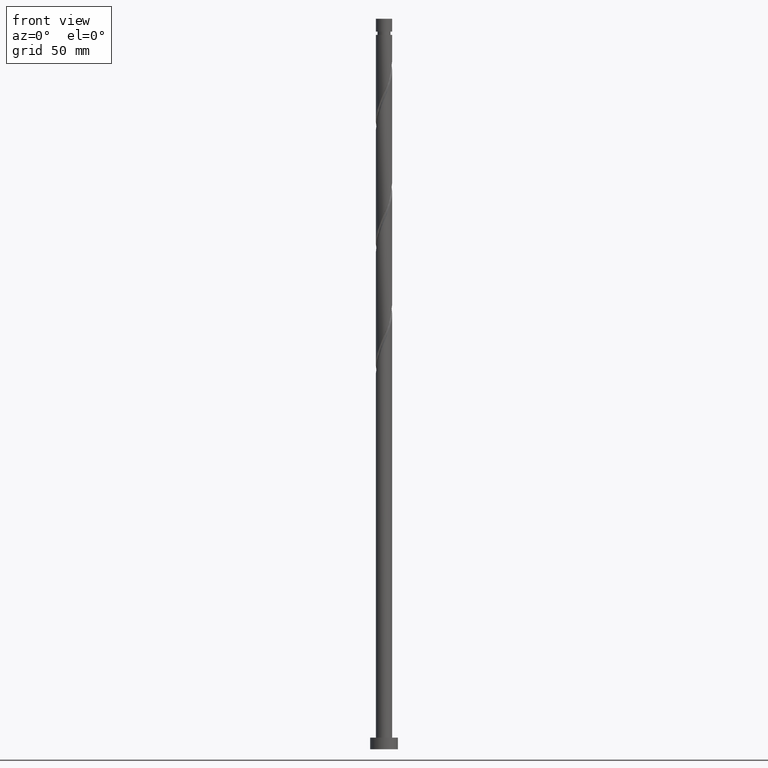
[diagram: clean part render]
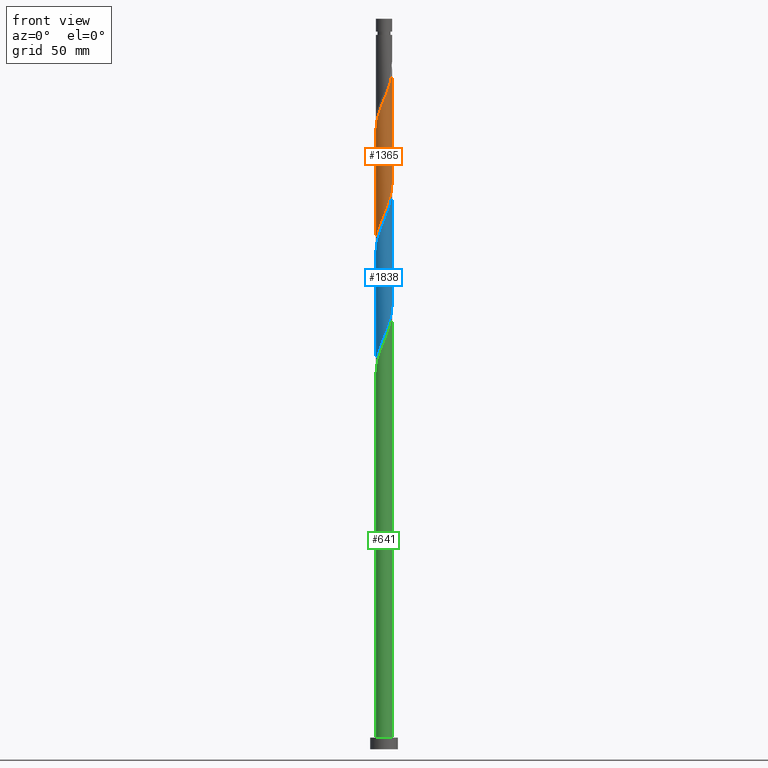
[diagram: same view with three faces highlighted in distinct colors, each labeled with its STEP entity id]
A machine part, front view with three faces highlighted in distinct colors.
Their STEP definitions:

[orange] entity #1365 — the highlighted cylindrical surface (edge-blend (fillet) strip) has radius 3.5 mm, axis along (-0, -0, -1).
#25 = EDGE_CURVE ( 'NONE', #1715, #484, #1550, .T. ) ;
#84 = CARTESIAN_POINT ( 'NONE',  ( -2.936332959584741609, -1.945113067390055850, 222.7746629832717247 ) ) ;
#109 = CARTESIAN_POINT ( 'NONE',  ( -1.594031268282363190, -3.115937148874821983, 276.2121629832718099 ) ) ;
#117 = CARTESIAN_POINT ( 'NONE',  ( -3.499999999999999112, 1.977664991602204269E-15, 217.8866800611777990 ) ) ;
#118 = CARTESIAN_POINT ( 'NONE',  ( 2.115738118524185474, -2.788127008194528411, 285.5871629832718099 ) ) ;
#149 = LINE ( 'NONE', #1670, #968 ) ;
#164 = CARTESIAN_POINT ( 'NONE',  ( 3.351524288208263425, -1.082959389832017560, 241.5246629832717815 ) ) ;
#215 = CARTESIAN_POINT ( 'NONE',  ( 3.499999999999999112, -2.388123763444171401E-15, 244.1366800611777990 ) ) ;
#236 = CARTESIAN_POINT ( 'NONE',  ( -3.498986612429489718, -0.08421808617630563432, 218.0871629832717815 ) ) ;
#246 = CARTESIAN_POINT ( 'NONE',  ( 0.4784591944698662336, -3.489497513067245205, 232.1496629832717531 ) ) ;
#259 = CARTESIAN_POINT ( 'NONE',  ( -3.392519425616069562, -0.8607043318222654671, 219.9621629832717247 ) ) ;
#267 = ORIENTED_EDGE ( 'NONE', *, *, #25, .F. ) ;
#279 = AXIS2_PLACEMENT_3D ( 'NONE', #1452, #394, #1003 ) ;
#283 = EDGE_CURVE ( 'NONE', #449, #1680, #1071, .T. ) ;
#289 = CARTESIAN_POINT ( 'NONE',  ( -3.500000000000003997, -0.3517632353407260104, 267.8759169843291943 ) ) ;
#305 = CARTESIAN_POINT ( 'NONE',  ( -1.945113067390059403, -2.936332959584744717, 275.2746629832716962 ) ) ;
#324 = VECTOR ( 'NONE', #1541, 1000.000000000000000 ) ;
#374 = CARTESIAN_POINT ( 'NONE',  ( -0.6964912059746364292, -3.429999999999998384, 229.3371629832717815 ) ) ;
#381 = EDGE_CURVE ( 'NONE', #1680, #1715, #1712, .T. ) ;
#391 = CARTESIAN_POINT ( 'NONE',  ( -0.3100230221172557976, -3.508475711791736007, 230.2746629832718099 ) ) ;
#394 = DIRECTION ( 'NONE',  ( -0.000000000000000000, -0.000000000000000000, -1.000000000000000000 ) ) ;
#402 = CARTESIAN_POINT ( 'NONE',  ( 2.549740574321675446, -2.429884585352361626, 237.7746629832717815 ) ) ;
#409 = CARTESIAN_POINT ( 'NONE',  ( 3.026513442067373827, -1.801591651696005325, 239.6496629832717815 ) ) ;
#449 = VERTEX_POINT ( 'NONE', #1254 ) ;
#479 = CARTESIAN_POINT ( 'NONE',  ( -0.08421808617630681393, -3.498986612429495491, 279.9621629832718099 ) ) ;
#483 = CARTESIAN_POINT ( 'NONE',  ( 3.500000000000000000, 4.286263797015736595E-16, 315.0000000000000000 ) ) ;
#484 = VERTEX_POINT ( 'NONE', #1134 ) ;
#512 = CARTESIAN_POINT ( 'NONE',  ( -1.082959389832017560, -3.351524288208263425, 228.3996629832717815 ) ) ;
#559 = CARTESIAN_POINT ( 'NONE',  ( -3.500000000000005329, -6.044938276218016901E-16, 267.0376459053657072 ) ) ;
#608 = ORIENTED_EDGE ( 'NONE', *, *, #381, .F. ) ;
#647 = CARTESIAN_POINT ( 'NONE',  ( 2.429884585352364290, -2.549740574321678999, 286.5246629832718099 ) ) ;
#657 = CARTESIAN_POINT ( 'NONE',  ( 3.295541338164898360, -1.242949469174666310, 290.2746629832715826 ) ) ;
#689 = CARTESIAN_POINT ( 'NONE',  ( 2.683108772468555170, -2.247426820855869423, 287.4621629832716962 ) ) ;
#696 = EDGE_LOOP ( 'NONE', ( #608, #1858, #1528, #267 ) ) ;
#733 = CARTESIAN_POINT ( 'NONE',  ( 3.499999999999999556, -0.3517632353407268986, 243.2984089822142266 ) ) ;
#794 = CARTESIAN_POINT ( 'NONE',  ( -1.242949469174666310, -3.295541338164898360, 277.1496629832716962 ) ) ;
#805 = CARTESIAN_POINT ( 'NONE',  ( 1.801591651696005547, -3.026513442067377824, 284.6496629832716962 ) ) ;
#820 = CARTESIAN_POINT ( 'NONE',  ( 3.115937148874821983, -1.594031268282363190, 289.3371629832717531 ) ) ;
#867 = CARTESIAN_POINT ( 'NONE',  ( 3.189018865137817738, -1.442275520764011665, 240.5871629832717531 ) ) ;
#944 = CARTESIAN_POINT ( 'NONE',  ( 0.3100230221172547984, -3.508475711791739116, 280.8996629832716962 ) ) ;
#960 = CARTESIAN_POINT ( 'NONE',  ( 1.442275520764012109, -3.189018865137824399, 283.7121629832718668 ) ) ;
#968 = VECTOR ( 'NONE', #1653, 1000.000000000000000 ) ;
#980 = CARTESIAN_POINT ( 'NONE',  ( 0.08421808617630542615, -3.498986612429489718, 231.2121629832717531 ) ) ;
#987 = CARTESIAN_POINT ( 'NONE',  ( 1.242949469174664312, -3.295541338164893919, 234.0246629832717815 ) ) ;
#990 = CYLINDRICAL_SURFACE ( 'NONE', #279, 3.500000000000000000 ) ;
#998 = CARTESIAN_POINT ( 'NONE',  ( 1.594031268282359637, -3.115937148874819318, 234.9621629832717531 ) ) ;
#1003 = DIRECTION ( 'NONE',  ( -1.000000000000000000, 0.000000000000000000, 0.000000000000000000 ) ) ;
#1017 = CARTESIAN_POINT ( 'NONE',  ( -3.499999999999998668, -0.04211514008236950934, 217.9870427494028888 ) ) ;
#1071 =( BOUNDED_CURVE ( )  B_SPLINE_CURVE ( 2, ( #559, #289, #1655, #1625, #1791, #1360, #1208, #1497, #1802, #305, #109, #794, #1248, #1834, #479, #944, #1102, #1700, #960, #805, #118, #647, #689, #1609, #820, #657, #1469, #1117, #1311, #1171, #1518 ),
 .UNSPECIFIED., .F., .T. ) 
 B_SPLINE_CURVE_WITH_KNOTS ( ( 3, 2, 2, 2, 2, 2, 2, 2, 2, 2, 2, 2, 2, 2, 2, 3 ),
 ( 0.5545303401299220836, 0.5625000000000000000, 0.5714285714285713969, 0.5803571428571427937, 0.5892857142857143016, 0.5982142857142856984, 0.6071428571428572063, 0.6160714285714286031, 0.6250000000000000000, 0.6339285714285713969, 0.6428571428571427937, 0.6517857142857143016, 0.6607142857142856984, 0.6696428571428572063, 0.6785714285714286031, 0.6795303401299216395 ),
 .UNSPECIFIED. ) 
 CURVE ( )  GEOMETRIC_REPRESENTATION_ITEM ( )  RATIONAL_B_SPLINE_CURVE ( ( 0.9079949616362150699, 0.9039886423360783407, 0.9090909090909449208, 0.9033747362666201264, 0.9090909090909449208, 0.9033747362666201264, 0.9090909090909449208, 0.9033747362666201264, 0.9090909090909449208, 0.9033747362666201264, 0.9090909090909449208, 0.9033747362666201264, 0.9090909090909449208, 0.9033747362666201264, 0.9090909090909449208, 0.9033747362666201264, 0.9090909090909449208, 0.9033747362666201264, 0.9090909090909449208, 0.9033747362666201264, 0.9090909090909449208, 0.9033747362666201264, 0.9090909090909449208, 0.9033747362666201264, 0.9090909090909449208, 0.9033747362666201264, 0.9090909090909449208, 0.9033747362666201264, 0.9090909090909449208, 0.9084770030214870395, 0.9079949616362155140 ) ) 
 REPRESENTATION_ITEM ( '' )  );
#1102 = CARTESIAN_POINT ( 'NONE',  ( 0.6964912059746362072, -3.430000000000005045, 281.8371629832717531 ) ) ;
#1117 = CARTESIAN_POINT ( 'NONE',  ( 3.489497513067249201, -0.4784591944698687316, 292.1496629832717531 ) ) ;
#1134 = CARTESIAN_POINT ( 'NONE',  ( -3.499999999999999112, 1.977664991602204269E-15, 217.8866800611777990 ) ) ;
#1144 = CARTESIAN_POINT ( 'NONE',  ( 0.8607043318222652450, -3.392519425616069562, 233.0871629832716962 ) ) ;
#1158 = CARTESIAN_POINT ( 'NONE',  ( -3.115937148874819318, -1.594031268282360303, 221.8371629832717815 ) ) ;
#1170 = CARTESIAN_POINT ( 'NONE',  ( 2.788127008194524414, -2.115738118524183253, 238.7121629832718099 ) ) ;
#1171 = CARTESIAN_POINT ( 'NONE',  ( 3.500000000000004441, -0.04211514008238558676, 293.1872832171405889 ) ) ;
#1195 = CARTESIAN_POINT ( 'NONE',  ( 3.500000000000005329, 8.209175436839281998E-17, 293.2876459053657072 ) ) ;
#1208 = CARTESIAN_POINT ( 'NONE',  ( -2.788127008194528411, -2.115738118524185474, 272.4621629832717531 ) ) ;
#1248 = CARTESIAN_POINT ( 'NONE',  ( -0.8607043318222679096, -3.392519425616074891, 278.0871629832716962 ) ) ;
#1254 = CARTESIAN_POINT ( 'NONE',  ( -3.500000000000005329, -6.044938276218016901E-16, 267.0376459053657072 ) ) ;
#1311 = CARTESIAN_POINT ( 'NONE',  ( 3.498986612429495491, -0.08421808617630711924, 293.0871629832717531 ) ) ;
#1336 = FACE_OUTER_BOUND ( 'NONE', #696, .T. ) ;
#1360 = CARTESIAN_POINT ( 'NONE',  ( -3.026513442067377824, -1.801591651696005991, 271.5246629832716394 ) ) ;
#1365 = ADVANCED_FACE ( 'NONE', ( #1336 ), #990, .T. ) ;
#1452 = CARTESIAN_POINT ( 'NONE',  ( 0.000000000000000000, 0.000000000000000000, 315.0000000000000000 ) ) ;
#1458 = CARTESIAN_POINT ( 'NONE',  ( -2.115738118524183253, -2.788127008194524858, 225.5871629832717815 ) ) ;
#1469 = CARTESIAN_POINT ( 'NONE',  ( 3.392519425616075335, -0.8607043318222679096, 291.2121629832717531 ) ) ;
#1497 = CARTESIAN_POINT ( 'NONE',  ( -2.549740574321678999, -2.429884585352364290, 273.3996629832717531 ) ) ;
#1518 = CARTESIAN_POINT ( 'NONE',  ( 3.500000000000005329, 8.209175436839281998E-17, 293.2876459053656504 ) ) ;
#1520 = CARTESIAN_POINT ( 'NONE',  ( 3.429999999999998384, -0.6964912059746366513, 242.4621629832718099 ) ) ;
#1528 = ORIENTED_EDGE ( 'NONE', *, *, #1534, .T. ) ;
#1534 = EDGE_CURVE ( 'NONE', #449, #484, #149, .T. ) ;
#1541 = DIRECTION ( 'NONE',  ( -0.000000000000000000, -0.000000000000000000, -1.000000000000000000 ) ) ;
#1550 =( BOUNDED_CURVE ( )  B_SPLINE_CURVE ( 2, ( #215, #733, #1520, #164, #867, #409, #1170, #402, #1734, #1876, #998, #987, #1144, #246, #980, #391, #374, #512, #1608, #1598, #1458, #1893, #1724, #84, #1158, #1771, #259, #1758, #236, #1017, #117 ),
 .UNSPECIFIED., .F., .T. ) 
 B_SPLINE_CURVE_WITH_KNOTS ( ( 3, 2, 2, 2, 2, 2, 2, 2, 2, 2, 2, 2, 2, 2, 2, 3 ),
 ( 0.5545303401299220836, 0.5625000000000000000, 0.5714285714285713969, 0.5803571428571429047, 0.5892857142857143016, 0.5982142857142856984, 0.6071428571428570953, 0.6160714285714286031, 0.6250000000000000000, 0.6339285714285713969, 0.6428571428571429047, 0.6517857142857143016, 0.6607142857142856984, 0.6696428571428570953, 0.6785714285714286031, 0.6795303401299219725 ),
 .UNSPECIFIED. ) 
 CURVE ( )  GEOMETRIC_REPRESENTATION_ITEM ( )  RATIONAL_B_SPLINE_CURVE ( ( 0.9079949616362087417, 0.9039886423360717904, 0.9090909090909385926, 0.9033747362666134650, 0.9090909090909385926, 0.9033747362666134650, 0.9090909090909385926, 0.9033747362666134650, 0.9090909090909385926, 0.9033747362666134650, 0.9090909090909385926, 0.9033747362666134650, 0.9090909090909385926, 0.9033747362666134650, 0.9090909090909385926, 0.9033747362666134650, 0.9090909090909385926, 0.9033747362666134650, 0.9090909090909385926, 0.9033747362666134650, 0.9090909090909385926, 0.9033747362666134650, 0.9090909090909385926, 0.9033747362666134650, 0.9090909090909385926, 0.9033747362666134650, 0.9090909090909385926, 0.9033747362666134650, 0.9090909090909385926, 0.9084770030214804892, 0.9079949616362087417 ) ) 
 REPRESENTATION_ITEM ( '' )  );
#1598 = CARTESIAN_POINT ( 'NONE',  ( -1.801591651696005325, -3.026513442067374715, 226.5246629832717815 ) ) ;
#1608 = CARTESIAN_POINT ( 'NONE',  ( -1.442275520764011665, -3.189018865137817738, 227.4621629832717247 ) ) ;
#1609 = CARTESIAN_POINT ( 'NONE',  ( 2.936332959584744717, -1.945113067390059403, 288.3996629832715826 ) ) ;
#1625 = CARTESIAN_POINT ( 'NONE',  ( -3.351524288208268754, -1.082959389832017560, 269.6496629832716394 ) ) ;
#1653 = DIRECTION ( 'NONE',  ( -0.000000000000000000, -0.000000000000000000, -1.000000000000000000 ) ) ;
#1655 = CARTESIAN_POINT ( 'NONE',  ( -3.430000000000005045, -0.6964912059746363182, 268.7121629832717531 ) ) ;
#1670 = CARTESIAN_POINT ( 'NONE',  ( -3.500000000000000000, 0.000000000000000000, 315.0000000000000000 ) ) ;
#1680 = VERTEX_POINT ( 'NONE', #1195 ) ;
#1700 = CARTESIAN_POINT ( 'NONE',  ( 1.082959389832017338, -3.351524288208268754, 282.7746629832716962 ) ) ;
#1712 = LINE ( 'NONE', #483, #324 ) ;
#1715 = VERTEX_POINT ( 'NONE', #1814 ) ;
#1724 = CARTESIAN_POINT ( 'NONE',  ( -2.683108772468551617, -2.247426820855865426, 223.7121629832717815 ) ) ;
#1734 = CARTESIAN_POINT ( 'NONE',  ( 2.247426820855865426, -2.683108772468551617, 236.8371629832717531 ) ) ;
#1758 = CARTESIAN_POINT ( 'NONE',  ( -3.489497513067245205, -0.4784591944698665111, 219.0246629832717815 ) ) ;
#1771 = CARTESIAN_POINT ( 'NONE',  ( -3.295541338164893919, -1.242949469174664312, 220.8996629832717531 ) ) ;
#1791 = CARTESIAN_POINT ( 'NONE',  ( -3.189018865137823511, -1.442275520764012331, 270.5871629832718099 ) ) ;
#1802 = CARTESIAN_POINT ( 'NONE',  ( -2.247426820855869423, -2.683108772468555614, 274.3371629832718099 ) ) ;
#1814 = CARTESIAN_POINT ( 'NONE',  ( 3.499999999999999112, -2.388123763444171401E-15, 244.1366800611777990 ) ) ;
#1834 = CARTESIAN_POINT ( 'NONE',  ( -0.4784591944698684540, -3.489497513067249201, 279.0246629832716394 ) ) ;
#1858 = ORIENTED_EDGE ( 'NONE', *, *, #283, .F. ) ;
#1876 = CARTESIAN_POINT ( 'NONE',  ( 1.945113067390055850, -2.936332959584742497, 235.8996629832718099 ) ) ;
#1893 = CARTESIAN_POINT ( 'NONE',  ( -2.429884585352361626, -2.549740574321675446, 224.6496629832717815 ) ) ;

[blue] entity #1838 — the highlighted cylindrical surface (edge-blend (fillet) strip) has radius 3.5 mm, axis along (-0, -0, -1).
#36 = CYLINDRICAL_SURFACE ( 'NONE', #87, 3.500000000000000000 ) ;
#45 = CARTESIAN_POINT ( 'NONE',  ( -3.392519425616069562, -0.8607043318222654671, 167.4621629832717815 ) ) ;
#55 = CARTESIAN_POINT ( 'NONE',  ( -1.801591651696005325, -3.026513442067374715, 174.0246629832717247 ) ) ;
#64 = FACE_OUTER_BOUND ( 'NONE', #1476, .T. ) ;
#74 = CARTESIAN_POINT ( 'NONE',  ( -0.3100230221172557976, -3.508475711791736007, 177.7746629832717815 ) ) ;
#85 = CARTESIAN_POINT ( 'NONE',  ( 3.489497513067249201, -0.4784591944698687316, 239.6496629832716962 ) ) ;
#87 = AXIS2_PLACEMENT_3D ( 'NONE', #817, #656, #1275 ) ;
#92 = DIRECTION ( 'NONE',  ( -0.000000000000000000, -0.000000000000000000, -1.000000000000000000 ) ) ;
#150 = CARTESIAN_POINT ( 'NONE',  ( -0.4784591944698684540, -3.489497513067249201, 226.5246629832716678 ) ) ;
#184 = CARTESIAN_POINT ( 'NONE',  ( 2.683108772468555170, -2.247426820855869423, 234.9621629832717815 ) ) ;
#193 = CARTESIAN_POINT ( 'NONE',  ( -1.442275520764011665, -3.189018865137817738, 174.9621629832717815 ) ) ;
#238 = CARTESIAN_POINT ( 'NONE',  ( 3.498986612429495491, -0.08421808617630711924, 240.5871629832717815 ) ) ;
#290 = CARTESIAN_POINT ( 'NONE',  ( 0.3100230221172547984, -3.508475711791739116, 228.3996629832717247 ) ) ;
#328 = CARTESIAN_POINT ( 'NONE',  ( 3.499999999999999112, -2.388123763444171401E-15, 191.6366800611778274 ) ) ;
#337 = CARTESIAN_POINT ( 'NONE',  ( -0.6964912059746364292, -3.429999999999998384, 176.8371629832717815 ) ) ;
#342 = CARTESIAN_POINT ( 'NONE',  ( 2.429884585352364290, -2.549740574321678999, 234.0246629832716962 ) ) ;
#349 = CARTESIAN_POINT ( 'NONE',  ( 3.026513442067373827, -1.801591651696005325, 187.1496629832718099 ) ) ;
#358 = CARTESIAN_POINT ( 'NONE',  ( 2.788127008194524414, -2.115738118524183253, 186.2121629832717531 ) ) ;
#366 = CARTESIAN_POINT ( 'NONE',  ( 3.189018865137817738, -1.442275520764011665, 188.0871629832717531 ) ) ;
#369 = CARTESIAN_POINT ( 'NONE',  ( 3.500000000000005329, 6.194196011433276529E-16, 240.7876459053657072 ) ) ;
#380 = LINE ( 'NONE', #1124, #516 ) ;
#416 = CARTESIAN_POINT ( 'NONE',  ( -1.594031268282363190, -3.115937148874821983, 223.7121629832717247 ) ) ;
#424 = CARTESIAN_POINT ( 'NONE',  ( -0.8607043318222679096, -3.392519425616074891, 225.5871629832717531 ) ) ;
#431 = VERTEX_POINT ( 'NONE', #1107 ) ;
#460 = ORIENTED_EDGE ( 'NONE', *, *, #796, .T. ) ;
#468 = CARTESIAN_POINT ( 'NONE',  ( 3.429999999999998384, -0.6964912059746366513, 189.9621629832717815 ) ) ;
#478 = CARTESIAN_POINT ( 'NONE',  ( -1.082959389832017560, -3.351524288208263425, 175.8996629832717815 ) ) ;
#503 = CARTESIAN_POINT ( 'NONE',  ( 0.4784591944698662336, -3.489497513067245205, 179.6496629832718099 ) ) ;
#516 = VECTOR ( 'NONE', #92, 1000.000000000000000 ) ;
#524 = DIRECTION ( 'NONE',  ( -0.000000000000000000, -0.000000000000000000, -1.000000000000000000 ) ) ;
#528 =( BOUNDED_CURVE ( )  B_SPLINE_CURVE ( 2, ( #1209, #1918, #1361, #724, #1329, #1339, #1803, #600, #710, #560, #416, #1783, #424, #150, #1038, #290, #748, #1816, #619, #599, #1103, #342, #184, #785, #1395, #905, #1402, #85, #238, #674, #369 ),
 .UNSPECIFIED., .F., .T. ) 
 B_SPLINE_CURVE_WITH_KNOTS ( ( 3, 2, 2, 2, 2, 2, 2, 2, 2, 2, 2, 2, 2, 2, 2, 3 ),
 ( 0.3045303401299223611, 0.3125000000000000000, 0.3214285714285713969, 0.3303571428571429047, 0.3392857142857143016, 0.3482142857142856984, 0.3571428571428570953, 0.3660714285714286031, 0.3750000000000000000, 0.3839285714285713969, 0.3928571428571429047, 0.4017857142857143016, 0.4107142857142856984, 0.4196428571428570953, 0.4285714285714286031, 0.4295303401299220281 ),
 .UNSPECIFIED. ) 
 CURVE ( )  GEOMETRIC_REPRESENTATION_ITEM ( )  RATIONAL_B_SPLINE_CURVE ( ( 0.9079949616362148479, 0.9039886423360785628, 0.9090909090909449208, 0.9033747362666201264, 0.9090909090909449208, 0.9033747362666201264, 0.9090909090909449208, 0.9033747362666201264, 0.9090909090909449208, 0.9033747362666201264, 0.9090909090909449208, 0.9033747362666201264, 0.9090909090909449208, 0.9033747362666201264, 0.9090909090909449208, 0.9033747362666201264, 0.9090909090909449208, 0.9033747362666201264, 0.9090909090909449208, 0.9033747362666201264, 0.9090909090909449208, 0.9033747362666201264, 0.9090909090909449208, 0.9033747362666201264, 0.9090909090909449208, 0.9033747362666201264, 0.9090909090909449208, 0.9033747362666201264, 0.9090909090909449208, 0.9084770030214868175, 0.9079949616362150699 ) ) 
 REPRESENTATION_ITEM ( '' )  );
#560 = CARTESIAN_POINT ( 'NONE',  ( -1.945113067390059403, -2.936332959584744717, 222.7746629832717247 ) ) ;
#599 = CARTESIAN_POINT ( 'NONE',  ( 1.801591651696005547, -3.026513442067377824, 232.1496629832717531 ) ) ;
#600 = CARTESIAN_POINT ( 'NONE',  ( -2.549740574321678999, -2.429884585352364290, 220.8996629832716962 ) ) ;
#619 = CARTESIAN_POINT ( 'NONE',  ( 1.442275520764012109, -3.189018865137824399, 231.2121629832717815 ) ) ;
#656 = DIRECTION ( 'NONE',  ( -0.000000000000000000, -0.000000000000000000, -1.000000000000000000 ) ) ;
#667 = CARTESIAN_POINT ( 'NONE',  ( 1.945113067390055850, -2.936332959584742497, 183.3996629832717815 ) ) ;
#673 = EDGE_CURVE ( 'NONE', #431, #1028, #380, .T. ) ;
#674 = CARTESIAN_POINT ( 'NONE',  ( 3.500000000000005329, -0.04211514008236853096, 240.6872832171406458 ) ) ;
#710 = CARTESIAN_POINT ( 'NONE',  ( -2.247426820855869423, -2.683108772468555614, 221.8371629832717531 ) ) ;
#724 = CARTESIAN_POINT ( 'NONE',  ( -3.351524288208268754, -1.082959389832017560, 217.1496629832716678 ) ) ;
#748 = CARTESIAN_POINT ( 'NONE',  ( 0.6964912059746362072, -3.430000000000005045, 229.3371629832717815 ) ) ;
#768 = EDGE_CURVE ( 'NONE', #1051, #431, #528, .T. ) ;
#772 = VERTEX_POINT ( 'NONE', #831 ) ;
#785 = CARTESIAN_POINT ( 'NONE',  ( 2.936332959584744717, -1.945113067390059403, 235.8996629832716962 ) ) ;
#796 = EDGE_CURVE ( 'NONE', #1051, #772, #1297, .T. ) ;
#812 = VECTOR ( 'NONE', #524, 1000.000000000000000 ) ;
#817 = CARTESIAN_POINT ( 'NONE',  ( 0.000000000000000000, 0.000000000000000000, 315.0000000000000000 ) ) ;
#829 = CARTESIAN_POINT ( 'NONE',  ( -3.499999999999999112, -7.776328004715082621E-15, 165.3866800611778842 ) ) ;
#831 = CARTESIAN_POINT ( 'NONE',  ( -3.499999999999999112, -7.776328004715082621E-15, 165.3866800611778842 ) ) ;
#883 = ORIENTED_EDGE ( 'NONE', *, *, #673, .F. ) ;
#905 = CARTESIAN_POINT ( 'NONE',  ( 3.295541338164898360, -1.242949469174666310, 237.7746629832717247 ) ) ;
#933 = CARTESIAN_POINT ( 'NONE',  ( 2.247426820855865426, -2.683108772468551617, 184.3371629832717531 ) ) ;
#959 = CARTESIAN_POINT ( 'NONE',  ( -3.499999999999999112, -0.04211514008237439433, 165.4870427494029173 ) ) ;
#970 = CARTESIAN_POINT ( 'NONE',  ( 1.242949469174664312, -3.295541338164893919, 181.5246629832717815 ) ) ;
#1012 = CARTESIAN_POINT ( 'NONE',  ( -3.500000000000005329, -1.119433014114447406E-15, 214.5376459053657356 ) ) ;
#1024 = ORIENTED_EDGE ( 'NONE', *, *, #1796, .F. ) ;
#1028 = VERTEX_POINT ( 'NONE', #1042 ) ;
#1038 = CARTESIAN_POINT ( 'NONE',  ( -0.08421808617630681393, -3.498986612429495491, 227.4621629832717247 ) ) ;
#1042 = CARTESIAN_POINT ( 'NONE',  ( 3.499999999999999112, -2.388123763444171401E-15, 191.6366800611778274 ) ) ;
#1051 = VERTEX_POINT ( 'NONE', #1012 ) ;
#1103 = CARTESIAN_POINT ( 'NONE',  ( 2.115738118524185474, -2.788127008194528411, 233.0871629832717531 ) ) ;
#1107 = CARTESIAN_POINT ( 'NONE',  ( 3.500000000000005329, 6.194196011433276529E-16, 240.7876459053657072 ) ) ;
#1124 = CARTESIAN_POINT ( 'NONE',  ( 3.500000000000000000, 4.286263797015736595E-16, 315.0000000000000000 ) ) ;
#1209 = CARTESIAN_POINT ( 'NONE',  ( -3.500000000000005329, -1.119433014114447406E-15, 214.5376459053657641 ) ) ;
#1275 = DIRECTION ( 'NONE',  ( -1.000000000000000000, 0.000000000000000000, 0.000000000000000000 ) ) ;
#1297 = LINE ( 'NONE', #1870, #812 ) ;
#1329 = CARTESIAN_POINT ( 'NONE',  ( -3.189018865137823511, -1.442275520764012331, 218.0871629832718099 ) ) ;
#1339 = CARTESIAN_POINT ( 'NONE',  ( -3.026513442067377824, -1.801591651696005991, 219.0246629832716962 ) ) ;
#1361 = CARTESIAN_POINT ( 'NONE',  ( -3.430000000000005045, -0.6964912059746363182, 216.2121629832717531 ) ) ;
#1395 = CARTESIAN_POINT ( 'NONE',  ( 3.115937148874821983, -1.594031268282363190, 236.8371629832717531 ) ) ;
#1401 = CARTESIAN_POINT ( 'NONE',  ( -2.429884585352361626, -2.549740574321675446, 172.1496629832717531 ) ) ;
#1402 = CARTESIAN_POINT ( 'NONE',  ( 3.392519425616075335, -0.8607043318222679096, 238.7121629832717531 ) ) ;
#1423 = CARTESIAN_POINT ( 'NONE',  ( -2.115738118524183253, -2.788127008194524858, 173.0871629832717815 ) ) ;
#1433 = CARTESIAN_POINT ( 'NONE',  ( 0.08421808617630542615, -3.498986612429489718, 178.7121629832717815 ) ) ;
#1476 = EDGE_LOOP ( 'NONE', ( #883, #1903, #460, #1024 ) ) ;
#1543 = CARTESIAN_POINT ( 'NONE',  ( -3.115937148874819318, -1.594031268282360303, 169.3371629832717815 ) ) ;
#1561 = CARTESIAN_POINT ( 'NONE',  ( 3.351524288208263425, -1.082959389832017560, 189.0246629832717247 ) ) ;
#1573 = CARTESIAN_POINT ( 'NONE',  ( 0.8607043318222652450, -3.392519425616069562, 180.5871629832717531 ) ) ;
#1679 = CARTESIAN_POINT ( 'NONE',  ( 3.500000000000000888, -0.3517632353407220136, 190.7984089822142550 ) ) ;
#1687 = CARTESIAN_POINT ( 'NONE',  ( 2.549740574321675446, -2.429884585352361626, 185.2746629832717531 ) ) ;
#1706 = CARTESIAN_POINT ( 'NONE',  ( 1.594031268282359637, -3.115937148874819318, 182.4621629832717531 ) ) ;
#1713 =( BOUNDED_CURVE ( )  B_SPLINE_CURVE ( 2, ( #328, #1679, #468, #1561, #366, #349, #358, #1687, #933, #667, #1706, #970, #1573, #503, #1433, #74, #337, #478, #193, #55, #1423, #1401, #1824, #1860, #1543, #1714, #45, #1833, #1851, #959, #829 ),
 .UNSPECIFIED., .F., .T. ) 
 B_SPLINE_CURVE_WITH_KNOTS ( ( 3, 2, 2, 2, 2, 2, 2, 2, 2, 2, 2, 2, 2, 2, 2, 3 ),
 ( 0.8045303401299219725, 0.8125000000000000000, 0.8214285714285713969, 0.8303571428571429047, 0.8392857142857143016, 0.8482142857142856984, 0.8571428571428570953, 0.8660714285714286031, 0.8750000000000000000, 0.8839285714285713969, 0.8928571428571429047, 0.9017857142857143016, 0.9107142857142856984, 0.9196428571428570953, 0.9285714285714286031, 0.9295303401299218615 ),
 .UNSPECIFIED. ) 
 CURVE ( )  GEOMETRIC_REPRESENTATION_ITEM ( )  RATIONAL_B_SPLINE_CURVE ( ( 0.9079949616362087417, 0.9039886423360716794, 0.9090909090909385926, 0.9033747362666134650, 0.9090909090909385926, 0.9033747362666134650, 0.9090909090909385926, 0.9033747362666134650, 0.9090909090909385926, 0.9033747362666134650, 0.9090909090909385926, 0.9033747362666134650, 0.9090909090909385926, 0.9033747362666134650, 0.9090909090909385926, 0.9033747362666134650, 0.9090909090909385926, 0.9033747362666134650, 0.9090909090909385926, 0.9033747362666134650, 0.9090909090909385926, 0.9033747362666134650, 0.9090909090909385926, 0.9033747362666134650, 0.9090909090909385926, 0.9033747362666134650, 0.9090909090909385926, 0.9033747362666134650, 0.9090909090909385926, 0.9084770030214806003, 0.9079949616362089637 ) ) 
 REPRESENTATION_ITEM ( '' )  );
#1714 = CARTESIAN_POINT ( 'NONE',  ( -3.295541338164893919, -1.242949469174664312, 168.3996629832718099 ) ) ;
#1783 = CARTESIAN_POINT ( 'NONE',  ( -1.242949469174666310, -3.295541338164898360, 224.6496629832716962 ) ) ;
#1796 = EDGE_CURVE ( 'NONE', #1028, #772, #1713, .T. ) ;
#1803 = CARTESIAN_POINT ( 'NONE',  ( -2.788127008194528411, -2.115738118524185474, 219.9621629832717531 ) ) ;
#1816 = CARTESIAN_POINT ( 'NONE',  ( 1.082959389832017338, -3.351524288208268754, 230.2746629832716962 ) ) ;
#1824 = CARTESIAN_POINT ( 'NONE',  ( -2.683108772468551617, -2.247426820855865426, 171.2121629832717815 ) ) ;
#1833 = CARTESIAN_POINT ( 'NONE',  ( -3.489497513067245205, -0.4784591944698665111, 166.5246629832717531 ) ) ;
#1838 = ADVANCED_FACE ( 'NONE', ( #64 ), #36, .T. ) ;
#1851 = CARTESIAN_POINT ( 'NONE',  ( -3.498986612429489718, -0.08421808617630563432, 165.5871629832717815 ) ) ;
#1860 = CARTESIAN_POINT ( 'NONE',  ( -2.936332959584741609, -1.945113067390055850, 170.2746629832717815 ) ) ;
#1870 = CARTESIAN_POINT ( 'NONE',  ( -3.500000000000000000, 0.000000000000000000, 315.0000000000000000 ) ) ;
#1903 = ORIENTED_EDGE ( 'NONE', *, *, #768, .F. ) ;
#1918 = CARTESIAN_POINT ( 'NONE',  ( -3.500000000000000888, -0.3517632353407380563, 215.3759169843292796 ) ) ;

[green] entity #641 — the highlighted cylindrical surface (edge-blend (fillet) strip) has radius 3.5 mm, axis along (-0, -0, -1).
#75 = EDGE_CURVE ( 'NONE', #1176, #1883, #1879, .T. ) ;
#139 = CARTESIAN_POINT ( 'NONE',  ( -2.788127008194528411, -2.115738118524185474, 167.4621629832717531 ) ) ;
#154 = CARTESIAN_POINT ( 'NONE',  ( -0.8607043318222679096, -3.392519425616074891, 173.0871629832717247 ) ) ;
#216 = DIRECTION ( 'NONE',  ( -0.000000000000000000, -0.000000000000000000, -1.000000000000000000 ) ) ;
#243 = CARTESIAN_POINT ( 'NONE',  ( 0.000000000000000000, 0.000000000000000000, 5.000000000000000000 ) ) ;
#256 = CARTESIAN_POINT ( 'NONE',  ( -0.08421808617630681393, -3.498986612429495491, 174.9621629832717531 ) ) ;
#297 = VERTEX_POINT ( 'NONE', #1221 ) ;
#335 = AXIS2_PLACEMENT_3D ( 'NONE', #243, #1015, #1466 ) ;
#410 = CARTESIAN_POINT ( 'NONE',  ( 3.500000000000005329, 6.194196011433276529E-16, 188.2876459053656788 ) ) ;
#438 = CARTESIAN_POINT ( 'NONE',  ( -0.4784591944698684540, -3.489497513067249201, 174.0246629832716962 ) ) ;
#485 = VECTOR ( 'NONE', #216, 1000.000000000000000 ) ;
#511 = DIRECTION ( 'NONE',  ( -1.000000000000000000, 0.000000000000000000, 0.000000000000000000 ) ) ;
#555 = EDGE_CURVE ( 'NONE', #297, #892, #810, .T. ) ;
#558 = ORIENTED_EDGE ( 'NONE', *, *, #940, .F. ) ;
#583 = AXIS2_PLACEMENT_3D ( 'NONE', #1588, #1285, #511 ) ;
#586 = CARTESIAN_POINT ( 'NONE',  ( -3.026513442067377824, -1.801591651696005991, 166.5246629832717531 ) ) ;
#641 = ADVANCED_FACE ( 'NONE', ( #1866 ), #699, .T. ) ;
#646 = ORIENTED_EDGE ( 'NONE', *, *, #555, .T. ) ;
#658 = LINE ( 'NONE', #1853, #1597 ) ;
#697 = CARTESIAN_POINT ( 'NONE',  ( 3.115937148874821983, -1.594031268282363190, 184.3371629832717815 ) ) ;
#699 = CYLINDRICAL_SURFACE ( 'NONE', #583, 3.500000000000000000 ) ;
#729 = CARTESIAN_POINT ( 'NONE',  ( -2.549740574321678999, -2.429884585352364290, 168.3996629832716962 ) ) ;
#741 = CARTESIAN_POINT ( 'NONE',  ( -3.430000000000005045, -0.6964912059746363182, 163.7121629832717531 ) ) ;
#810 = CIRCLE ( 'NONE', #335, 3.500000000000000000 ) ;
#821 = CARTESIAN_POINT ( 'NONE',  ( 3.500000000000000000, 4.286263797015736595E-16, 5.000000000000000000 ) ) ;
#845 = EDGE_CURVE ( 'NONE', #1176, #297, #953, .T. ) ;
#852 = CARTESIAN_POINT ( 'NONE',  ( 3.489497513067249201, -0.4784591944698687316, 187.1496629832717531 ) ) ;
#863 = CARTESIAN_POINT ( 'NONE',  ( 1.442275520764012109, -3.189018865137824399, 178.7121629832717815 ) ) ;
#892 = VERTEX_POINT ( 'NONE', #821 ) ;
#904 = ORIENTED_EDGE ( 'NONE', *, *, #845, .T. ) ;
#912 = CARTESIAN_POINT ( 'NONE',  ( -1.945113067390059403, -2.936332959584744717, 170.2746629832716962 ) ) ;
#940 = EDGE_CURVE ( 'NONE', #1883, #892, #658, .T. ) ;
#953 = LINE ( 'NONE', #1701, #485 ) ;
#966 = CARTESIAN_POINT ( 'NONE',  ( 2.936332959584744717, -1.945113067390059403, 183.3996629832716962 ) ) ;
#985 = CARTESIAN_POINT ( 'NONE',  ( 1.801591651696005547, -3.026513442067377824, 179.6496629832716962 ) ) ;
#993 = CARTESIAN_POINT ( 'NONE',  ( 2.429884585352364290, -2.549740574321678999, 181.5246629832717531 ) ) ;
#1015 = DIRECTION ( 'NONE',  ( 0.000000000000000000, 0.000000000000000000, 1.000000000000000000 ) ) ;
#1030 = CARTESIAN_POINT ( 'NONE',  ( -3.500000000000005329, 8.627097095442008069E-15, 162.0376459053656788 ) ) ;
#1088 = EDGE_LOOP ( 'NONE', ( #558, #1178, #904, #646 ) ) ;
#1111 = DIRECTION ( 'NONE',  ( -0.000000000000000000, -0.000000000000000000, -1.000000000000000000 ) ) ;
#1154 = CARTESIAN_POINT ( 'NONE',  ( 0.3100230221172547984, -3.508475711791739116, 175.8996629832717247 ) ) ;
#1167 = CARTESIAN_POINT ( 'NONE',  ( 3.392519425616075335, -0.8607043318222679096, 186.2121629832717531 ) ) ;
#1176 = VERTEX_POINT ( 'NONE', #1663 ) ;
#1178 = ORIENTED_EDGE ( 'NONE', *, *, #75, .F. ) ;
#1203 = CARTESIAN_POINT ( 'NONE',  ( -2.247426820855869423, -2.683108772468555614, 169.3371629832718099 ) ) ;
#1220 = CARTESIAN_POINT ( 'NONE',  ( -3.500000000000006217, -0.3517632353407142975, 162.8759169843293080 ) ) ;
#1221 = CARTESIAN_POINT ( 'NONE',  ( -3.500000000000000000, 0.000000000000000000, 5.000000000000000000 ) ) ;
#1285 = DIRECTION ( 'NONE',  ( -0.000000000000000000, -0.000000000000000000, -1.000000000000000000 ) ) ;
#1294 = CARTESIAN_POINT ( 'NONE',  ( 0.6964912059746362072, -3.430000000000005045, 176.8371629832717815 ) ) ;
#1318 = CARTESIAN_POINT ( 'NONE',  ( 3.295541338164898360, -1.242949469174666310, 185.2746629832718099 ) ) ;
#1343 = CARTESIAN_POINT ( 'NONE',  ( -1.242949469174666310, -3.295541338164898360, 172.1496629832717531 ) ) ;
#1354 = CARTESIAN_POINT ( 'NONE',  ( -3.351524288208268754, -1.082959389832017560, 164.6496629832717247 ) ) ;
#1373 = CARTESIAN_POINT ( 'NONE',  ( -1.594031268282363190, -3.115937148874821983, 171.2121629832717815 ) ) ;
#1428 = CARTESIAN_POINT ( 'NONE',  ( 2.115738118524185474, -2.788127008194528411, 180.5871629832717531 ) ) ;
#1448 = CARTESIAN_POINT ( 'NONE',  ( 3.498986612429495491, -0.08421808617630711924, 188.0871629832717531 ) ) ;
#1466 = DIRECTION ( 'NONE',  ( 1.000000000000000000, 0.000000000000000000, 0.000000000000000000 ) ) ;
#1570 = CARTESIAN_POINT ( 'NONE',  ( 3.500000000000005329, 6.194196011433275543E-16, 188.2876459053657072 ) ) ;
#1588 = CARTESIAN_POINT ( 'NONE',  ( 0.000000000000000000, 0.000000000000000000, 315.0000000000000000 ) ) ;
#1593 = CARTESIAN_POINT ( 'NONE',  ( 2.683108772468555170, -2.247426820855869423, 182.4621629832717815 ) ) ;
#1597 = VECTOR ( 'NONE', #1111, 1000.000000000000000 ) ;
#1652 = CARTESIAN_POINT ( 'NONE',  ( -3.189018865137823511, -1.442275520764012331, 165.5871629832717815 ) ) ;
#1663 = CARTESIAN_POINT ( 'NONE',  ( -3.500000000000005329, 8.627097095442008069E-15, 162.0376459053656788 ) ) ;
#1701 = CARTESIAN_POINT ( 'NONE',  ( -3.500000000000000000, 0.000000000000000000, 315.0000000000000000 ) ) ;
#1754 = CARTESIAN_POINT ( 'NONE',  ( 1.082959389832017338, -3.351524288208268754, 177.7746629832717815 ) ) ;
#1853 = CARTESIAN_POINT ( 'NONE',  ( 3.500000000000000000, 4.286263797015736595E-16, 315.0000000000000000 ) ) ;
#1866 = FACE_OUTER_BOUND ( 'NONE', #1088, .T. ) ;
#1875 = CARTESIAN_POINT ( 'NONE',  ( 3.500000000000005773, -0.04211514008235876100, 188.1872832171406174 ) ) ;
#1879 =( BOUNDED_CURVE ( )  B_SPLINE_CURVE ( 2, ( #1030, #1220, #741, #1354, #1652, #586, #139, #729, #1203, #912, #1373, #1343, #154, #438, #256, #1154, #1294, #1754, #863, #985, #1428, #993, #1593, #966, #697, #1318, #1167, #852, #1448, #1875, #1570 ),
 .UNSPECIFIED., .F., .T. ) 
 B_SPLINE_CURVE_WITH_KNOTS ( ( 3, 2, 2, 2, 2, 2, 2, 2, 2, 2, 2, 2, 2, 2, 2, 3 ),
 ( 0.05453034012992181295, 0.06250000000000000000, 0.07142857142857139685, 0.08035714285714290472, 0.08928571428571430157, 0.09821428571428569843, 0.1071428571428570953, 0.1160714285714286031, 0.1250000000000000000, 0.1339285714285713969, 0.1428571428571429047, 0.1517857142857143016, 0.1607142857142856984, 0.1696428571428570953, 0.1785714285714286031, 0.1795303401299222501 ),
 .UNSPECIFIED. ) 
 CURVE ( )  GEOMETRIC_REPRESENTATION_ITEM ( )  RATIONAL_B_SPLINE_CURVE ( ( 0.9079949616362154030, 0.9039886423360782297, 0.9090909090909449208, 0.9033747362666201264, 0.9090909090909449208, 0.9033747362666201264, 0.9090909090909449208, 0.9033747362666201264, 0.9090909090909449208, 0.9033747362666201264, 0.9090909090909449208, 0.9033747362666201264, 0.9090909090909449208, 0.9033747362666201264, 0.9090909090909449208, 0.9033747362666201264, 0.9090909090909449208, 0.9033747362666201264, 0.9090909090909449208, 0.9033747362666201264, 0.9090909090909449208, 0.9033747362666201264, 0.9090909090909449208, 0.9033747362666201264, 0.9090909090909449208, 0.9033747362666201264, 0.9090909090909449208, 0.9033747362666201264, 0.9090909090909449208, 0.9084770030214865955, 0.9079949616362148479 ) ) 
 REPRESENTATION_ITEM ( '' )  );
#1883 = VERTEX_POINT ( 'NONE', #410 ) ;